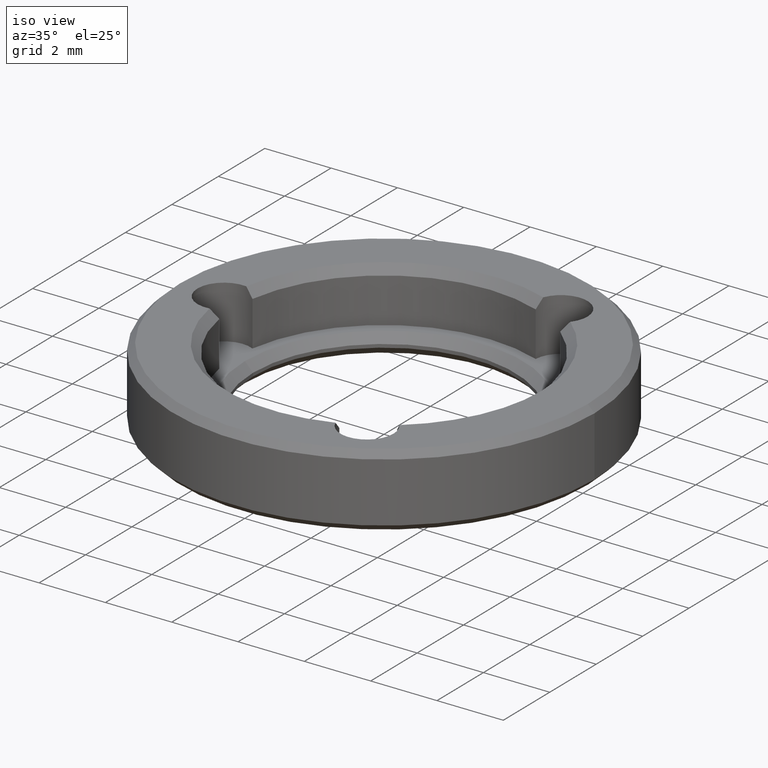
[diagram: clean part render]
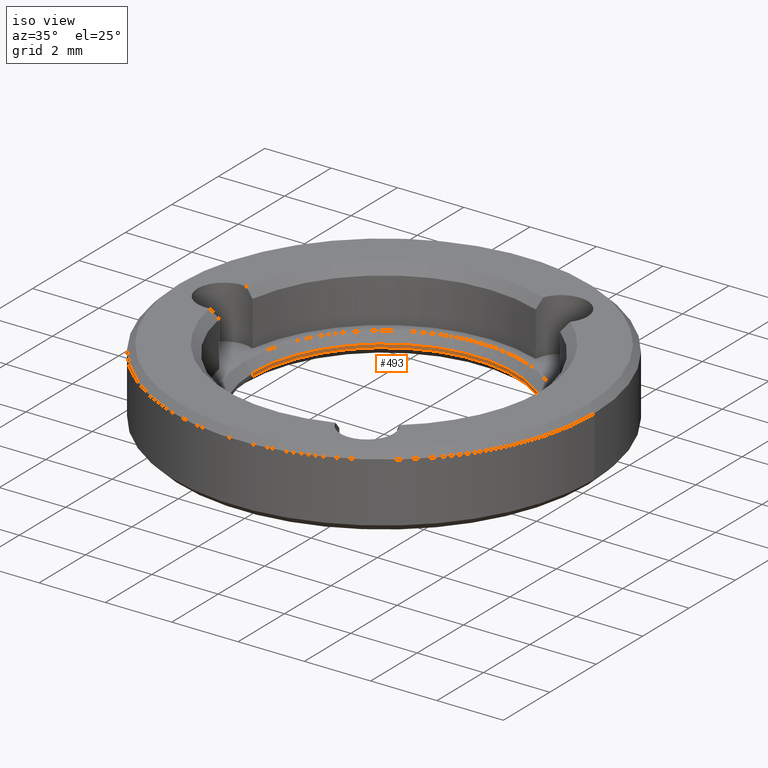
[diagram: same view with one face highlighted and labeled with its STEP entity id]
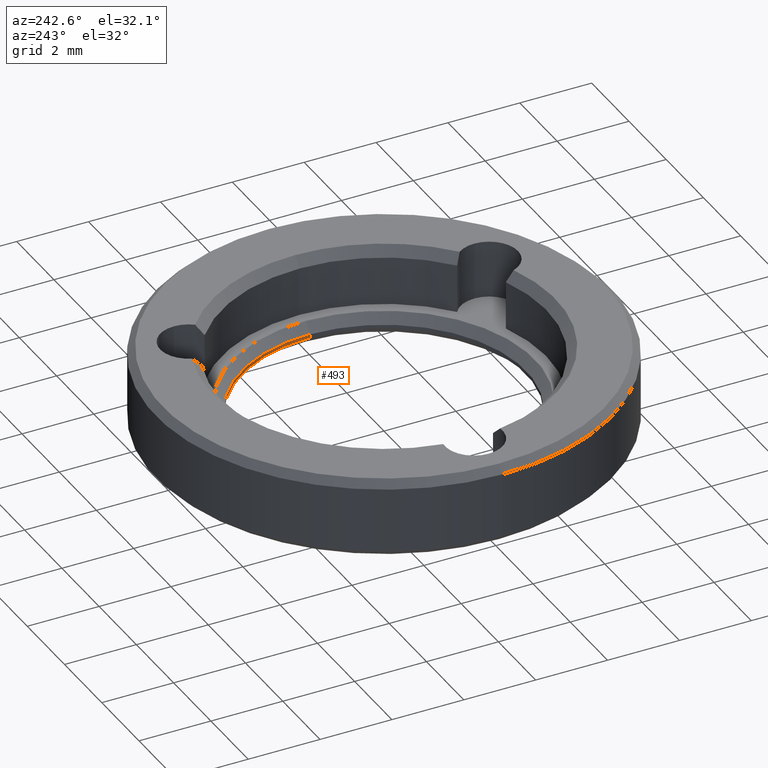
[diagram: same view with one face highlighted and labeled with its STEP entity id]
A machine part, iso view. The second image highlights one B-rep face of the part: STEP entity #493.
A second angle (auxiliary view) of the same face is appended — the face is thin or edge-on in the first view.
In plain terms, the highlighted cylindrical surface (partial cylindrical patch) has radius 3.95 mm, axis along (-0, -0, 1).
Its self-contained STEP definition (entity closure, byte-faithful):
#4 = LINE ( 'NONE', #705, #88 ) ;
#33 = VERTEX_POINT ( 'NONE', #101 ) ;
#39 = VERTEX_POINT ( 'NONE', #126 ) ;
#54 = EDGE_CURVE ( 'NONE', #727, #39, #818, .T. ) ;
#88 = VECTOR ( 'NONE', #516, 1000.000000000000000 ) ;
#101 = CARTESIAN_POINT ( 'NONE',  ( -3.950000000000000178, 4.837354856632045057E-16, 0.3500000000000067502 ) ) ;
#126 = CARTESIAN_POINT ( 'NONE',  ( 3.950000000000000178, 0.000000000000000000, 0.2499999999999985012 ) ) ;
#128 = CYLINDRICAL_SURFACE ( 'NONE', #721, 3.950000000000000178 ) ;
#134 = DIRECTION ( 'NONE',  ( -0.000000000000000000, -0.000000000000000000, -1.000000000000000000 ) ) ;
#217 = EDGE_CURVE ( 'NONE', #727, #33, #4, .T. ) ;
#280 = AXIS2_PLACEMENT_3D ( 'NONE', #350, #836, #556 ) ;
#299 = VERTEX_POINT ( 'NONE', #660 ) ;
#337 = LINE ( 'NONE', #624, #533 ) ;
#350 = CARTESIAN_POINT ( 'NONE',  ( 0.000000000000000000, 0.000000000000000000, 0.3500000000000067502 ) ) ;
#363 = ORIENTED_EDGE ( 'NONE', *, *, #526, .T. ) ;
#408 = DIRECTION ( 'NONE',  ( -0.000000000000000000, -0.000000000000000000, 1.000000000000000000 ) ) ;
#446 = EDGE_LOOP ( 'NONE', ( #685, #801, #745, #363 ) ) ;
#456 = CIRCLE ( 'NONE', #280, 3.950000000000000178 ) ;
#488 = CARTESIAN_POINT ( 'NONE',  ( 0.000000000000000000, 0.000000000000000000, 0.2499999999999985012 ) ) ;
#493 = ADVANCED_FACE ( 'NONE', ( #701 ), #128, .F. ) ;
#516 = DIRECTION ( 'NONE',  ( -0.000000000000000000, -0.000000000000000000, 1.000000000000000000 ) ) ;
#526 = EDGE_CURVE ( 'NONE', #299, #33, #456, .T. ) ;
#533 = VECTOR ( 'NONE', #749, 1000.000000000000000 ) ;
#556 = DIRECTION ( 'NONE',  ( 1.000000000000000000, 0.000000000000000000, 0.000000000000000000 ) ) ;
#588 = EDGE_CURVE ( 'NONE', #39, #299, #337, .T. ) ;
#624 = CARTESIAN_POINT ( 'NONE',  ( 3.950000000000000178, 0.000000000000000000, 0.000000000000000000 ) ) ;
#633 = DIRECTION ( 'NONE',  ( 1.000000000000000000, 0.000000000000000000, 0.000000000000000000 ) ) ;
#660 = CARTESIAN_POINT ( 'NONE',  ( 3.950000000000000178, 0.000000000000000000, 0.3500000000000067502 ) ) ;
#685 = ORIENTED_EDGE ( 'NONE', *, *, #217, .F. ) ;
#701 = FACE_OUTER_BOUND ( 'NONE', #446, .T. ) ;
#704 = CARTESIAN_POINT ( 'NONE',  ( -3.950000000000000178, 4.837354856632045057E-16, 0.2499999999999985012 ) ) ;
#705 = CARTESIAN_POINT ( 'NONE',  ( -3.950000000000000178, 4.837354856632045057E-16, 0.000000000000000000 ) ) ;
#721 = AXIS2_PLACEMENT_3D ( 'NONE', #746, #408, #633 ) ;
#727 = VERTEX_POINT ( 'NONE', #704 ) ;
#745 = ORIENTED_EDGE ( 'NONE', *, *, #588, .T. ) ;
#746 = CARTESIAN_POINT ( 'NONE',  ( 0.000000000000000000, 0.000000000000000000, 0.000000000000000000 ) ) ;
#749 = DIRECTION ( 'NONE',  ( -0.000000000000000000, -0.000000000000000000, 1.000000000000000000 ) ) ;
#801 = ORIENTED_EDGE ( 'NONE', *, *, #54, .T. ) ;
#818 = CIRCLE ( 'NONE', #831, 3.950000000000000178 ) ;
#831 = AXIS2_PLACEMENT_3D ( 'NONE', #488, #134, #833 ) ;
#833 = DIRECTION ( 'NONE',  ( 1.000000000000000000, 0.000000000000000000, 0.000000000000000000 ) ) ;
#836 = DIRECTION ( 'NONE',  ( 0.000000000000000000, 0.000000000000000000, 1.000000000000000000 ) ) ;